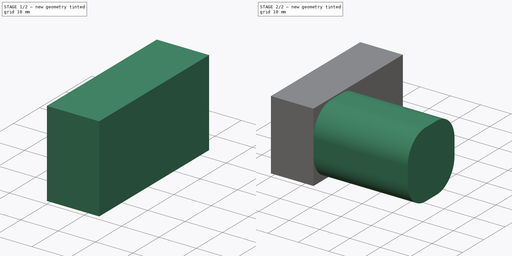
[diagram: build sequence overview — one tinted view per stage of 2, left to right]
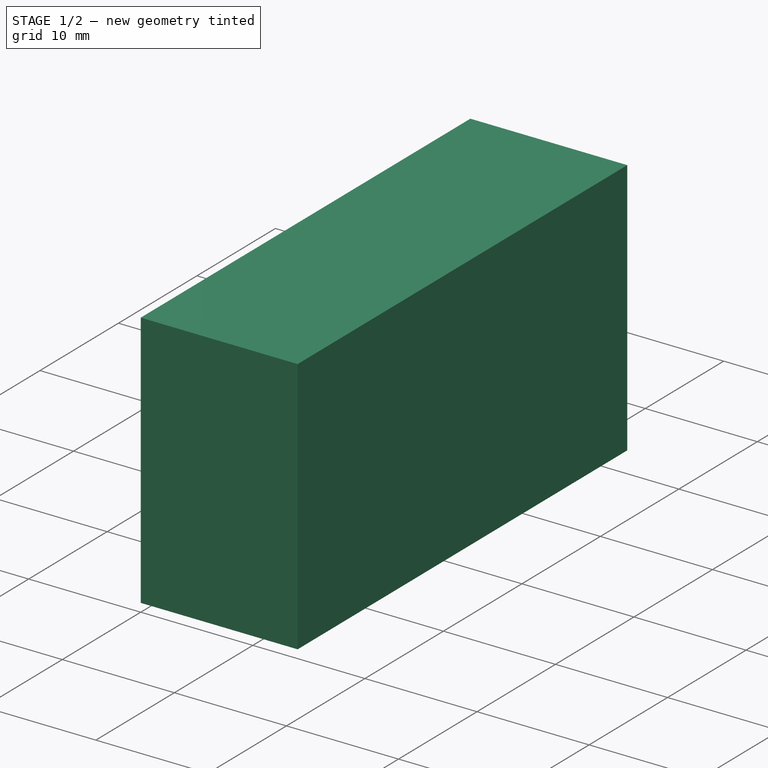
[diagram: stage 1 of 2 — iso view after this stage's code; geometry added in this stage tinted green]
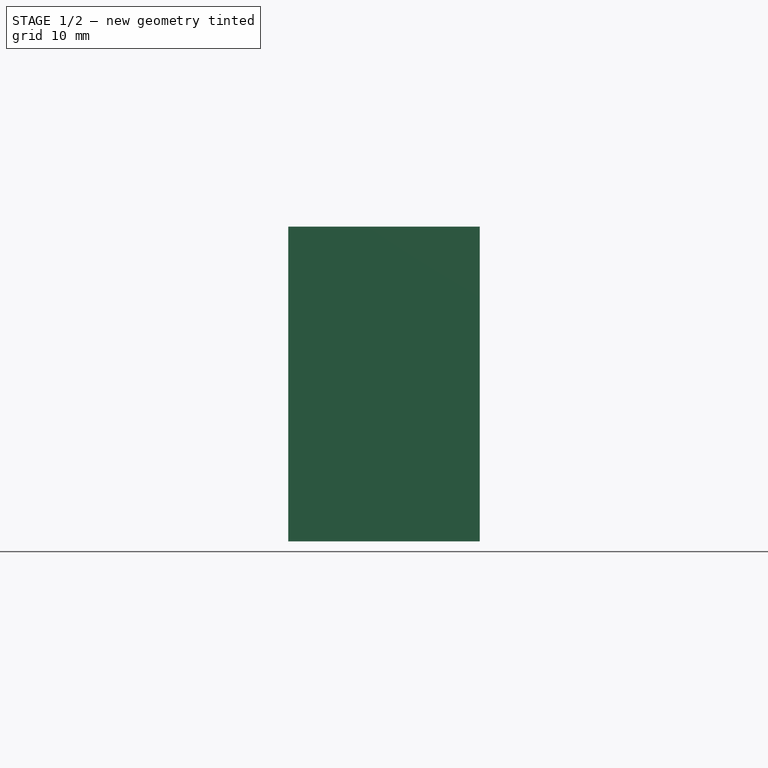
[diagram: stage 1 of 2 — front view after this stage's code; geometry added in this stage tinted green]
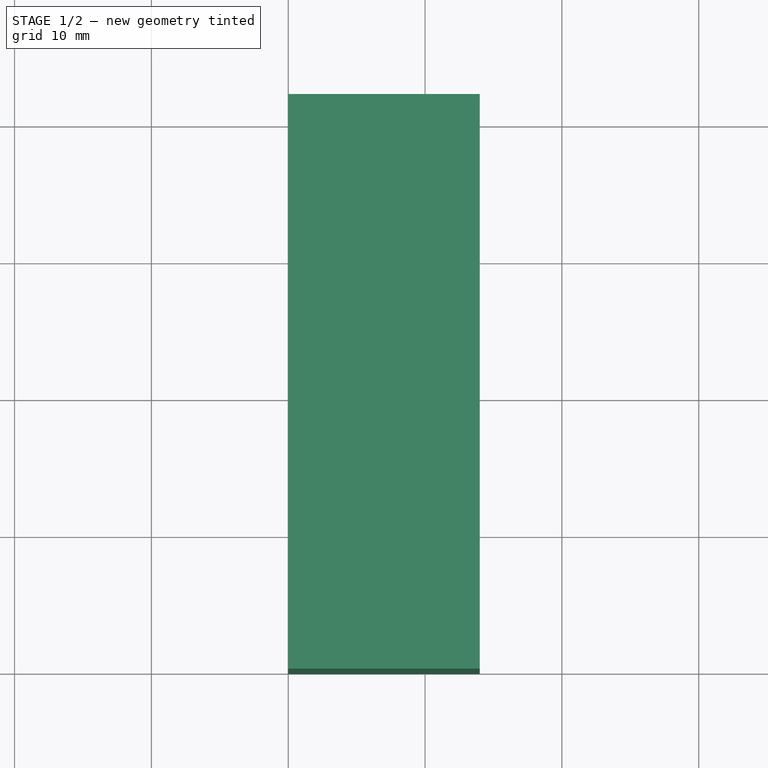
[diagram: stage 1 of 2 — top view after this stage's code; geometry added in this stage tinted green]
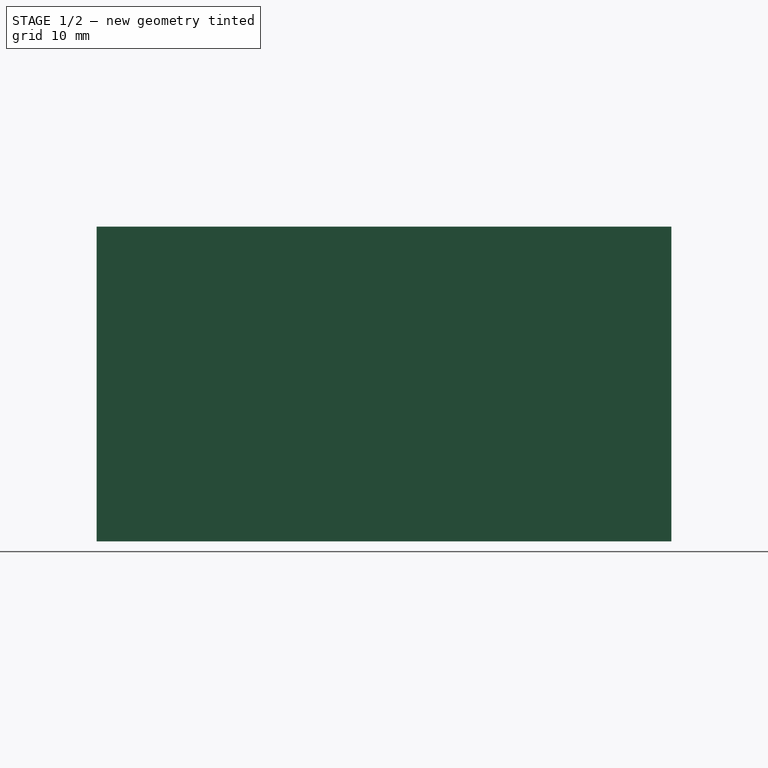
[diagram: stage 1 of 2 — right view after this stage's code; geometry added in this stage tinted green]
FCSTD DOCUMENT  (FreeCAD 0.16R6712 (Git))
Label: motoramarillo
License: All rights reserved
LicenseURL: http://en.wikipedia.org/wiki/All_rights_reserved
objects: Sketcher::SketchObject×2, PartDesign::Pad×2
note: 6 computed .brp shape members not serialized (recipe doc carries the construction recipe); baked Part::Feature solids carry a one-line shape summary decoded from their .brp

FEATURE [Sketcher::SketchObject] Sketch
  sketch-geometry (4):
    g0: LineSegment StartX=0 StartY=0 StartZ=0 EndX=0 EndY=42 EndZ=0
    g1: LineSegment StartX=0 StartY=42 StartZ=0 EndX=14 EndY=42 EndZ=0
    g2: LineSegment StartX=14 StartY=42 StartZ=0 EndX=14 EndY=0 EndZ=0
    g3: LineSegment StartX=0 StartY=0 StartZ=0 EndX=14 EndY=0 EndZ=0
  constraints (12):
    c: Vertical(g0)
    c: PointOnObject(g0,g-2)
    c: Distance(g0) = 42
    c: Horizontal(g1)
    c: Coincident(g1,g2)
    c: Vertical(g2)
    c: Distance(g2,g0) = 14
    c: Coincident(g3,g2)
    c: Horizontal(g3)
    c: Coincident(g1,g0)
    c: Coincident(g3,g0)
    c: Coincident(g0,g-1)
FEATURE [PartDesign::Pad] Pad
  Length = 23
  Length2 = 100
  Sketch = -> Sketch
  Type = 0
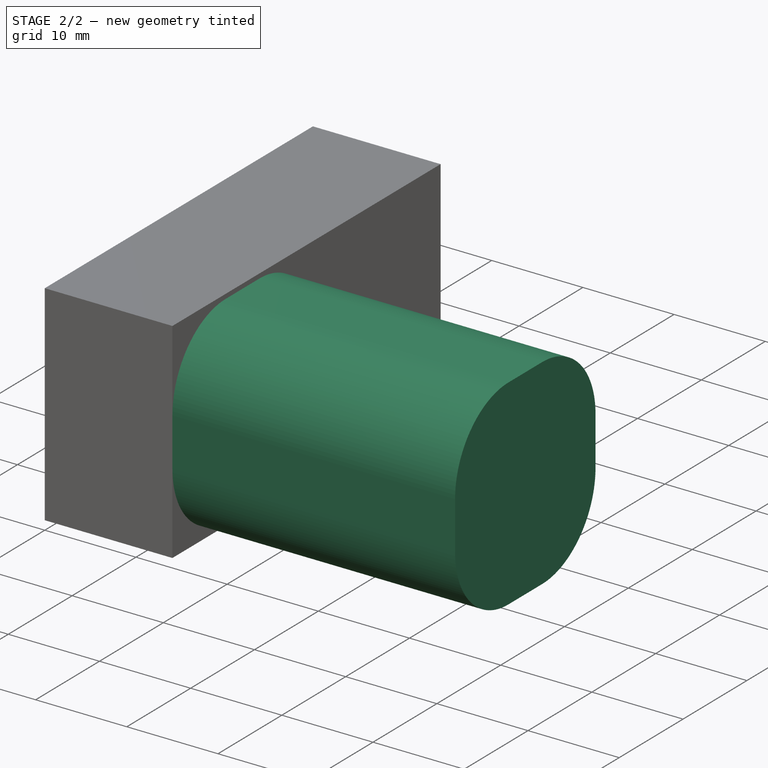
[diagram: stage 2 of 2 — iso view after this stage's code; geometry added in this stage tinted green]
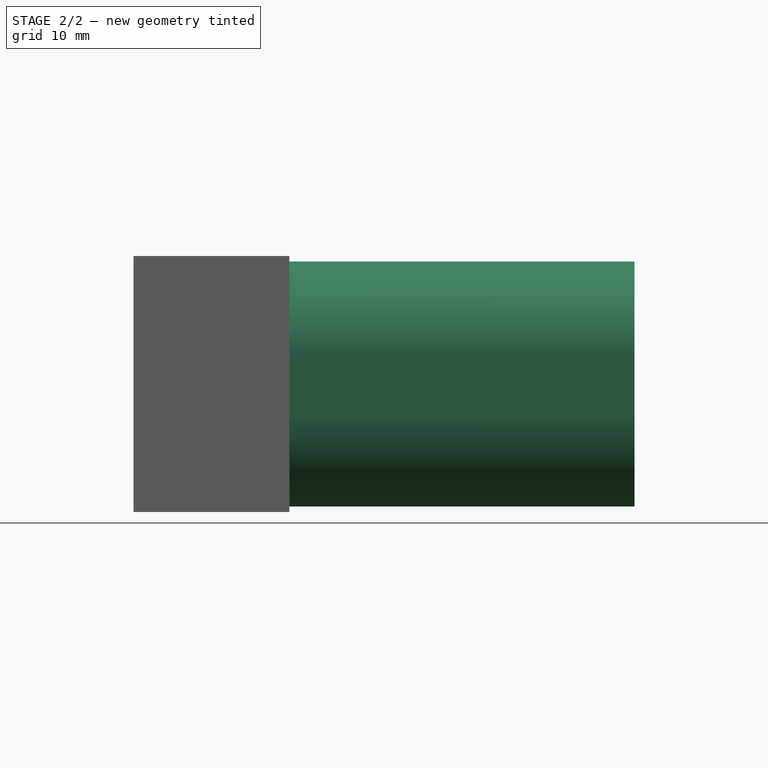
[diagram: stage 2 of 2 — front view after this stage's code; geometry added in this stage tinted green]
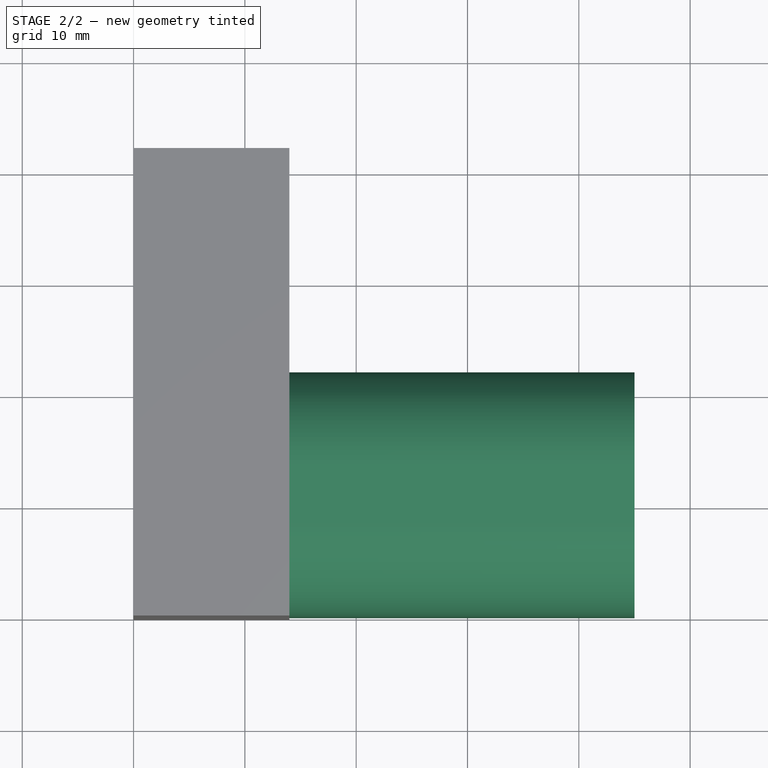
[diagram: stage 2 of 2 — top view after this stage's code; geometry added in this stage tinted green]
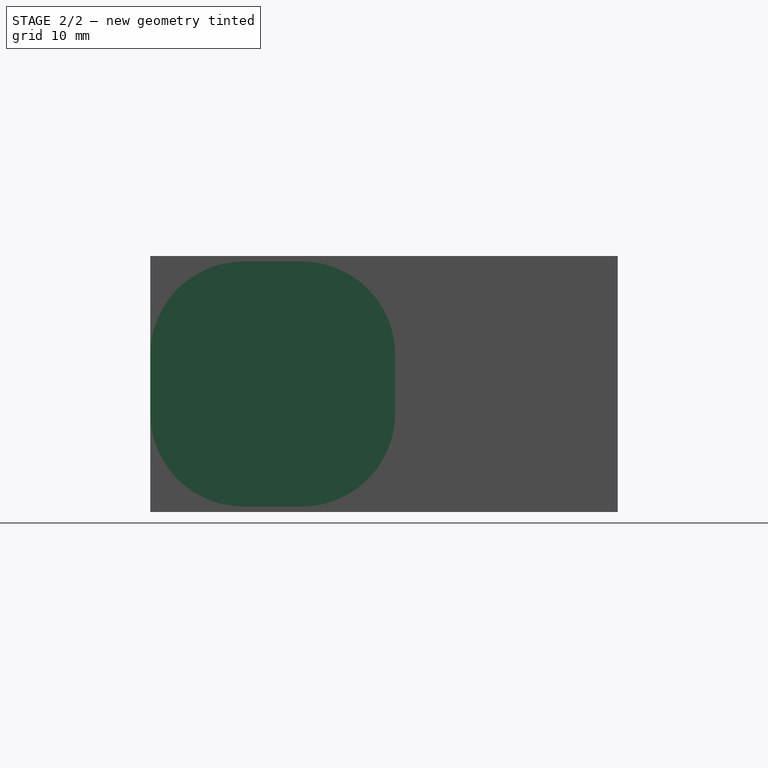
[diagram: stage 2 of 2 — right view after this stage's code; geometry added in this stage tinted green]
FEATURE [Sketcher::SketchObject] Sketch001
  Placement = pos=(14,0,0) rot=(0.57735,0.57735,0.57735;2.0944rad)
  Support = -> Pad [Face3]
  sketch-geometry (10):
    g0: LineSegment StartX=8.37446 StartY=0.5 StartZ=0 EndX=13.6255 EndY=0.5 EndZ=0
    g1: LineSegment StartX=22 StartY=8.87446 StartZ=0 EndX=22 EndY=14.1255 EndZ=0
    g2: LineSegment StartX=13.6255 StartY=22.5 StartZ=0 EndX=8.37446 EndY=22.5 EndZ=0
    g3: LineSegment StartX=0 StartY=14.1255 StartZ=0 EndX=0 EndY=8.87446 EndZ=0
    g4: ArcOfCircle CenterX=8.37446 CenterY=14.1255 CenterZ=0 NormalX=0 NormalY=0 NormalZ=1 Radius=8.37446 StartAngle=1.5708 EndAngle=3.14159
    g5: ArcOfCircle CenterX=13.6255 CenterY=14.1255 CenterZ=0 NormalX=0 NormalY=0 NormalZ=1 Radius=8.37446 StartAngle=0 EndAngle=1.5708
    g6: ArcOfCircle CenterX=8.37446 CenterY=8.87446 CenterZ=0 NormalX=0 NormalY=0 NormalZ=1 Radius=8.37446 StartAngle=3.14159 EndAngle=4.71239
    g7: ArcOfCircle CenterX=13.6255 CenterY=8.87446 CenterZ=0 NormalX=0 NormalY=0 NormalZ=1 Radius=8.37446 StartAngle=4.71239 EndAngle=6.28319
    g8: LineSegment [constr] StartX=-6.11996 StartY=14.1255 StartZ=0 EndX=32.8767 EndY=14.1255 EndZ=0
    g9: LineSegment [constr] StartX=-4.85178 StartY=8.87446 StartZ=0 EndX=29.1174 EndY=8.87446 EndZ=0
  constraints (24):
    c: Horizontal(g0)
    c: Horizontal(g2)
    c: Vertical(g1)
    c: Vertical(g3)
    c: Equal(g2,g1)
    c: Tangent(g2,g4) = -1.5708
    c: Tangent(g3,g4) = -1.5708
    c: Tangent(g1,g5) = -1.5708
    c: Tangent(g2,g5) = -1.5708
    c: Tangent(g0,g6) = -1.5708
    c: Tangent(g3,g6) = -1.5708
    c: Tangent(g0,g7) = -1.5708
    c: Tangent(g1,g7) = -1.5708
    c: Equal(g4,g7)
    c: Distance(g3,g1) = 22
    c: Equal(g1,g3)
    c: Equal(g2,g0)
    c: Horizontal(g8)
    c: PointOnObject(g3,g8)
    c: PointOnObject(g1,g8)
    c: Horizontal(g9)
    c: PointOnObject(g3,g9)
    c: DistanceY(g-1,g0) = 0.5
    c: PointOnObject(g3,g-2)
FEATURE [PartDesign::Pad] Pad001
  Length = 34
  Length2 = 100
  Sketch = -> Sketch001
  Type = 0
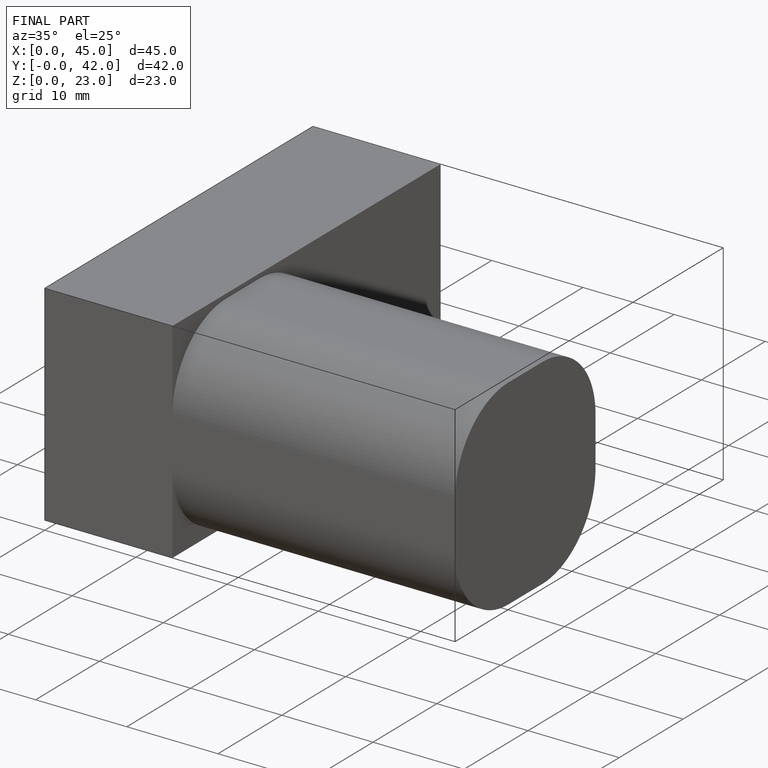
[diagram: finished part — iso view with bounding-box wireframe]
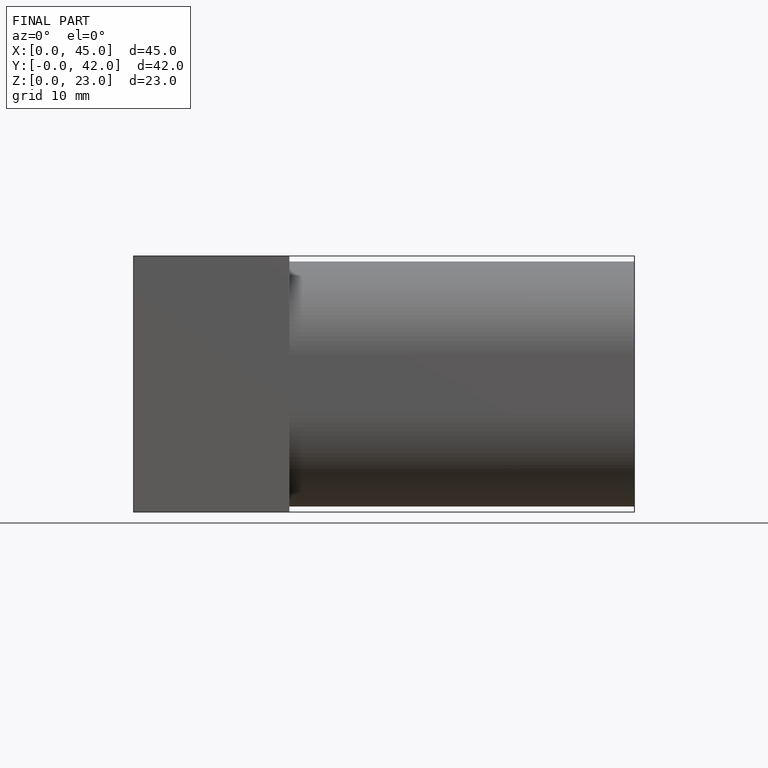
[diagram: finished part — front view with bounding-box wireframe]
